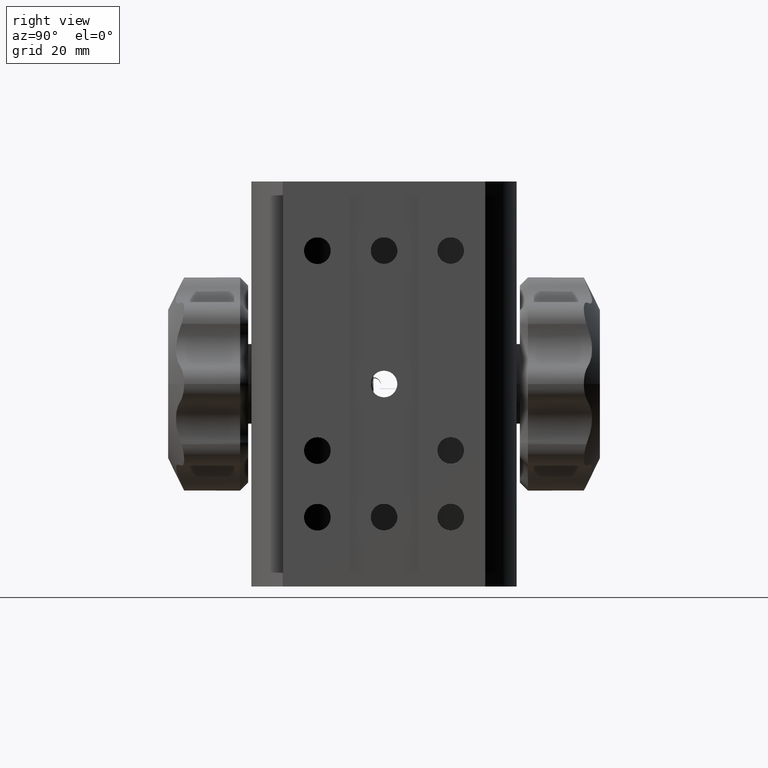
[diagram: clean part render]
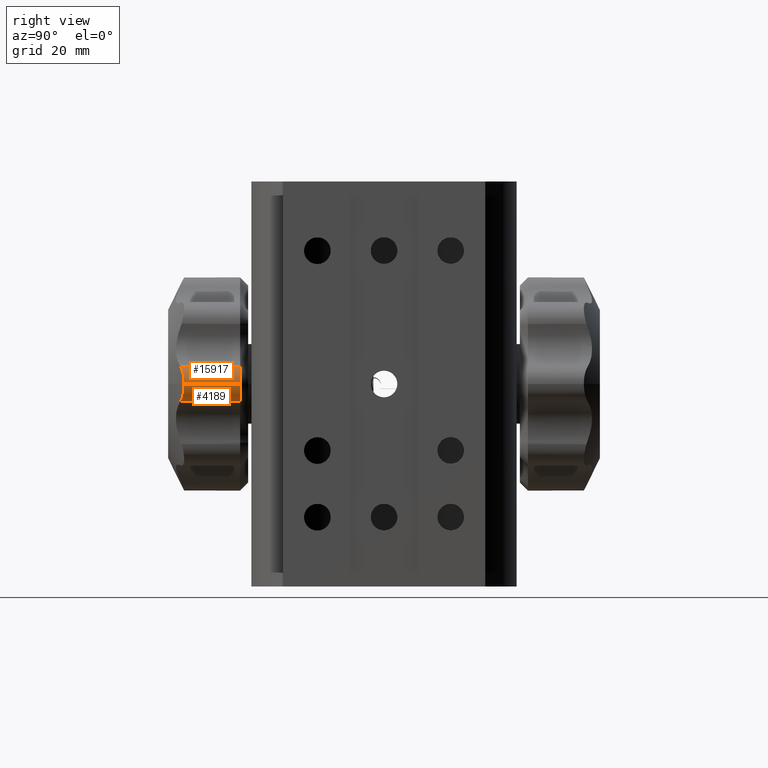
[diagram: same view with one multi-face feature highlighted, each face labeled with its STEP entity id]
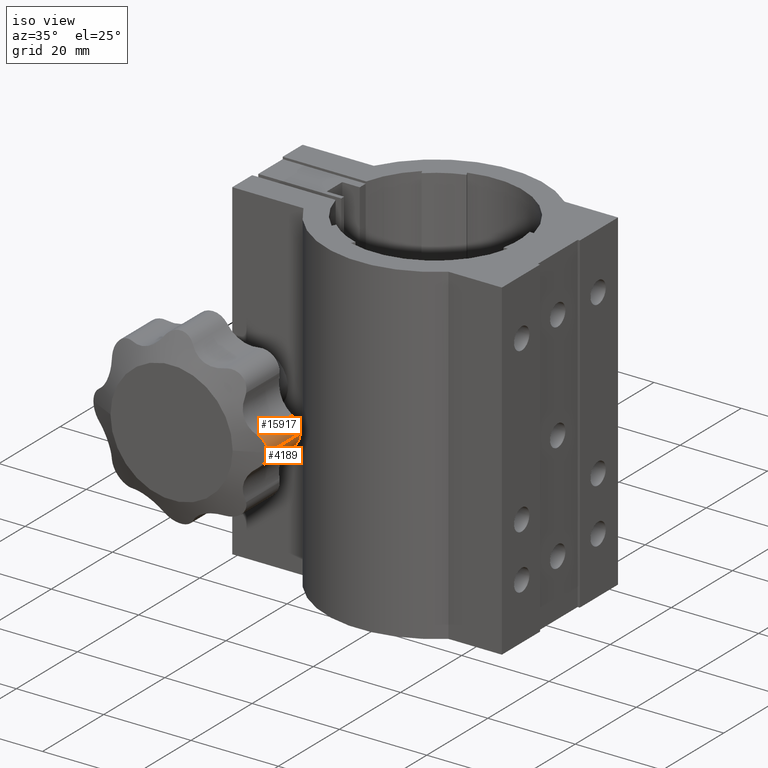
[diagram: same view with one multi-face feature highlighted, each face labeled with its STEP entity id]
A machine part, right view. The highlighted faces form ONE feature: a constant-radius fillet chain: 2 tangent blend faces with common blend radius 4 mm. The faces share edges in the B-rep.
A second angle (iso view) of the same feature is appended — it is thin or edge-on in the first view.
Their STEP definitions:
[1] entity #4189 (Cylinder):
#4 = CARTESIAN_POINT ( 'NONE',  ( -12.10000000000002800, -37.49999999999995000, 38.00000000000000000 ) ) ;
#414 = ORIENTED_EDGE ( 'NONE', *, *, #13451, .T. ) ;
#831 = AXIS2_PLACEMENT_3D ( 'NONE', #10496, #3027, #11750 ) ;
#882 = DIRECTION ( 'NONE',  ( -7.511012776517795100E-017, 1.000000000000000000, -5.679044632606782400E-017 ) ) ;
#1066 = VERTEX_POINT ( 'NONE', #4 ) ;
#1091 = CARTESIAN_POINT ( 'NONE',  ( -13.58618007707078100, -38.11260631183431300, 34.87270644837894200 ) ) ;
#1112 = CARTESIAN_POINT ( 'NONE',  ( -12.10000000000002100, -40.49999999999987200, 37.99999999999995000 ) ) ;
#1399 = FACE_OUTER_BOUND ( 'NONE', #5488, .T. ) ;
#1484 = EDGE_CURVE ( 'NONE', #9461, #4757, #4716, .T. ) ;
#1778 = AXIS2_PLACEMENT_3D ( 'NONE', #7250, #15979, #4761 ) ;
#2069 = ORIENTED_EDGE ( 'NONE', *, *, #2977, .F. ) ;
#2977 = EDGE_CURVE ( 'NONE', #1066, #7727, #12423, .T. ) ;
#3027 = DIRECTION ( 'NONE',  ( 7.511012776517795100E-017, -1.000000000000000000, 5.679044632606782400E-017 ) ) ;
#3641 = CARTESIAN_POINT ( 'NONE',  ( -12.92095610663810100, -37.83354631144486300, 35.55149460211535500 ) ) ;
#4189 = ADVANCED_FACE ( 'NONE', ( #1399 ), #6531, .T. ) ;
#4716 = LINE ( 'NONE', #14655, #14329 ) ;
#4757 = VERTEX_POINT ( 'NONE', #9696 ) ;
#4761 = DIRECTION ( 'NONE',  ( 1.000000000000000000, 0.0000000000000000000, 0.0000000000000000000 ) ) ;
#4894 = CARTESIAN_POINT ( 'NONE',  ( -12.50094550742581000, -37.66163561037062400, 36.24700668126612900 ) ) ;
#5405 = EDGE_CURVE ( 'NONE', #9461, #1066, #6940, .T. ) ;
#5488 = EDGE_LOOP ( 'NONE', ( #2069, #12374, #7981, #414 ) ) ;
#5756 = VECTOR ( 'NONE', #882, 1000.000000000000000 ) ;
#6188 = CARTESIAN_POINT ( 'NONE',  ( -12.31359701654337400, -37.58577770716807700, 36.69999040669321000 ) ) ;
#6531 = CYLINDRICAL_SURFACE ( 'NONE', #1778, 3.999999999999993300 ) ;
#6940 = B_SPLINE_CURVE_WITH_KNOTS ( 'NONE', 3,
 ( #9891, #1091, #11131, #3641, #12401, #4894, #13671, #6188, #14916, #7436, #16225, #8659 ),
 .UNSPECIFIED., .F., .F.,
 ( 4, 2, 2, 2, 2, 4 ),
 ( 2.535578288699374700E-007, 0.0009902620523125509900, 0.001980270546796232100, 0.002475274794038083100, 0.002970279041279934500, 0.003960287535763635500 ),
 .UNSPECIFIED. ) ;
#7250 = CARTESIAN_POINT ( 'NONE',  ( -16.10000000000001200, -40.49999999999987200, 37.99999999999995000 ) ) ;
#7436 = CARTESIAN_POINT ( 'NONE',  ( -12.14106475492095200, -37.51638630186253900, 37.33967780000021000 ) ) ;
#7727 = VERTEX_POINT ( 'NONE', #12158 ) ;
#7981 = ORIENTED_EDGE ( 'NONE', *, *, #1484, .T. ) ;
#8659 = CARTESIAN_POINT ( 'NONE',  ( -12.10000000000002800, -37.49999999999995000, 38.00000000000000000 ) ) ;
#9461 = VERTEX_POINT ( 'NONE', #12196 ) ;
#9696 = CARTESIAN_POINT ( 'NONE',  ( -13.84647206857440900, -26.99999999999985100, 34.69521379476906000 ) ) ;
#9891 = CARTESIAN_POINT ( 'NONE',  ( -13.84647206857440900, -38.22485992281477300, 34.69521379476906000 ) ) ;
#10496 = CARTESIAN_POINT ( 'NONE',  ( -16.10000000000001600, -26.99999999999985100, 37.99999999999995000 ) ) ;
#11131 = CARTESIAN_POINT ( 'NONE',  ( -13.34860991247550600, -38.01216060073307500, 35.07915228988844800 ) ) ;
#11750 = DIRECTION ( 'NONE',  ( -1.000000000000000000, 0.0000000000000000000, 0.0000000000000000000 ) ) ;
#12158 = CARTESIAN_POINT ( 'NONE',  ( -12.10000000000003200, -26.99999999999985100, 37.99999999999995000 ) ) ;
#12196 = CARTESIAN_POINT ( 'NONE',  ( -13.84647206857440900, -38.22485992281477300, 34.69521379476906000 ) ) ;
#12374 = ORIENTED_EDGE ( 'NONE', *, *, #5405, .F. ) ;
#12401 = CARTESIAN_POINT ( 'NONE',  ( -12.73095924099772000, -37.75545086922182500, 35.81956893519713200 ) ) ;
#12423 = LINE ( 'NONE', #1112, #5756 ) ;
#13451 = EDGE_CURVE ( 'NONE', #4757, #7727, #15645, .T. ) ;
#13671 = CARTESIAN_POINT ( 'NONE',  ( -12.43266998980681100, -37.63393594762441600, 36.39452091506762300 ) ) ;
#14329 = VECTOR ( 'NONE', #14604, 1000.000000000000000 ) ;
#14604 = DIRECTION ( 'NONE',  ( -7.511012776517795100E-017, 1.000000000000000000, -5.679044632606782400E-017 ) ) ;
#14655 = CARTESIAN_POINT ( 'NONE',  ( -13.84647206857440500, -40.49999999999987200, 34.69521379476906000 ) ) ;
#14916 = CARTESIAN_POINT ( 'NONE',  ( -12.26258764679220500, -37.56523457982451200, 36.85913854825242500 ) ) ;
#15645 = CIRCLE ( 'NONE', #831, 3.999999999999993300 ) ;
#15979 = DIRECTION ( 'NONE',  ( -7.511012776517795100E-017, 1.000000000000000000, -5.679044632606782400E-017 ) ) ;
#16225 = CARTESIAN_POINT ( 'NONE',  ( -12.10000000000001900, -37.49999999999995000, 37.66651602611741400 ) ) ;
[2] entity #15917 (Cylinder):
#4 = CARTESIAN_POINT ( 'NONE',  ( -12.10000000000002800, -37.49999999999995000, 38.00000000000000000 ) ) ;
#342 = VECTOR ( 'NONE', #778, 1000.000000000000000 ) ;
#778 = DIRECTION ( 'NONE',  ( -7.511012776517795100E-017, 1.000000000000000000, -5.679044632606782400E-017 ) ) ;
#882 = DIRECTION ( 'NONE',  ( -7.511012776517795100E-017, 1.000000000000000000, -5.679044632606782400E-017 ) ) ;
#1066 = VERTEX_POINT ( 'NONE', #4 ) ;
#1112 = CARTESIAN_POINT ( 'NONE',  ( -12.10000000000002100, -40.49999999999987200, 37.99999999999995000 ) ) ;
#1975 = AXIS2_PLACEMENT_3D ( 'NONE', #6811, #15575, #8042 ) ;
#2977 = EDGE_CURVE ( 'NONE', #1066, #7727, #12423, .T. ) ;
#3029 = CARTESIAN_POINT ( 'NONE',  ( -16.10000000000001200, -40.49999999999987200, 37.99999999999995000 ) ) ;
#3078 = EDGE_CURVE ( 'NONE', #1066, #4131, #7148, .T. ) ;
#3233 = FACE_OUTER_BOUND ( 'NONE', #6154, .T. ) ;
#3708 = CARTESIAN_POINT ( 'NONE',  ( -13.84647206857898800, -38.22485992281671200, 41.30478620523395300 ) ) ;
#3766 = CARTESIAN_POINT ( 'NONE',  ( -13.58652559600771100, -38.11275532044614800, 41.12752916038006400 ) ) ;
#4090 = CARTESIAN_POINT ( 'NONE',  ( -13.84647206857893300, -26.99999999999985100, 41.30478620523395300 ) ) ;
#4131 = VERTEX_POINT ( 'NONE', #8363 ) ;
#4366 = CARTESIAN_POINT ( 'NONE',  ( -13.34914336907249300, -38.01238578080707200, 40.92132908734077300 ) ) ;
#4423 = CARTESIAN_POINT ( 'NONE',  ( -13.02851694067564200, -37.87846908720870000, 40.56735968971986500 ) ) ;
#4534 = CARTESIAN_POINT ( 'NONE',  ( -12.92700158500896100, -37.83638424736694400, 40.44095306908768400 ) ) ;
#4640 = CARTESIAN_POINT ( 'NONE',  ( -12.74024568565808100, -37.75938828361663700, 40.17674568433822900 ) ) ;
#4681 = EDGE_CURVE ( 'NONE', #4131, #11636, #7480, .T. ) ;
#4743 = CARTESIAN_POINT ( 'NONE',  ( -12.65513164865500400, -37.72452414048559900, 40.03939154882525000 ) ) ;
#4982 = CYLINDRICAL_SURFACE ( 'NONE', #12330, 3.999999999999993300 ) ;
#5623 = CARTESIAN_POINT ( 'NONE',  ( -12.43301073186955600, -37.63407384865914200, 39.60632474972952400 ) ) ;
#5756 = VECTOR ( 'NONE', #882, 1000.000000000000000 ) ;
#5800 = CARTESIAN_POINT ( 'NONE',  ( -12.31343870608171000, -37.58571358947026700, 39.29963189464451300 ) ) ;
#5801 = CARTESIAN_POINT ( 'NONE',  ( -13.84647206857898500, -40.49999999999987200, 41.30478620523395300 ) ) ;
#5855 = CARTESIAN_POINT ( 'NONE',  ( -12.26273394888004600, -37.56529357583921300, 39.14124462860497300 ) ) ;
#5915 = CARTESIAN_POINT ( 'NONE',  ( -12.18199555004974300, -37.53283897366436200, 38.82236924770292300 ) ) ;
#5980 = CARTESIAN_POINT ( 'NONE',  ( -12.15151395416763200, -37.52062347683789100, 38.66081262209890900 ) ) ;
#6031 = CARTESIAN_POINT ( 'NONE',  ( -12.11050873953517600, -37.50420100701807500, 38.33342894045505000 ) ) ;
#6092 = CARTESIAN_POINT ( 'NONE',  ( -12.10000000000002800, -37.49999999999995000, 38.00000000000000000 ) ) ;
#6154 = EDGE_LOOP ( 'NONE', ( #11689, #10834, #8858, #12747 ) ) ;
#6260 = CARTESIAN_POINT ( 'NONE',  ( -12.10000000000003000, -37.49999999999995700, 38.16649490943557800 ) ) ;
#6644 = CIRCLE ( 'NONE', #1975, 3.999999999999993300 ) ;
#6811 = CARTESIAN_POINT ( 'NONE',  ( -16.10000000000001600, -26.99999999999985100, 37.99999999999995000 ) ) ;
#7148 = B_SPLINE_CURVE_WITH_KNOTS ( 'NONE', 3,
 ( #6092, #6260, #6031, #5980, #5915, #5855, #5800, #5623, #9800, #4743, #4640, #4534, #4423, #4366, #3766, #3708 ),
 .UNSPECIFIED., .F., .F.,
 ( 4, 2, 2, 2, 2, 2, 2, 4 ),
 ( 0.003960287535763635500, 0.004454558287999421100, 0.004948829040235207600, 0.005443099792470993200, 0.005937370544706778800, 0.006431641296942564400, 0.006925912049178350800, 0.007914453553649943700 ),
 .UNSPECIFIED. ) ;
#7480 = LINE ( 'NONE', #5801, #342 ) ;
#7727 = VERTEX_POINT ( 'NONE', #12158 ) ;
#8042 = DIRECTION ( 'NONE',  ( -1.000000000000000000, 0.0000000000000000000, 0.0000000000000000000 ) ) ;
#8363 = CARTESIAN_POINT ( 'NONE',  ( -13.84647206857898800, -38.22485992281671200, 41.30478620523395300 ) ) ;
#8858 = ORIENTED_EDGE ( 'NONE', *, *, #13276, .T. ) ;
#9800 = CARTESIAN_POINT ( 'NONE',  ( -12.50151586287644400, -37.66186732320722500, 39.75418008265639000 ) ) ;
#10834 = ORIENTED_EDGE ( 'NONE', *, *, #2977, .T. ) ;
#11636 = VERTEX_POINT ( 'NONE', #4090 ) ;
#11689 = ORIENTED_EDGE ( 'NONE', *, *, #3078, .F. ) ;
#11700 = DIRECTION ( 'NONE',  ( -7.511012776517795100E-017, 1.000000000000000000, -5.679044632606782400E-017 ) ) ;
#11753 = DIRECTION ( 'NONE',  ( 1.000000000000000000, 0.0000000000000000000, 0.0000000000000000000 ) ) ;
#12158 = CARTESIAN_POINT ( 'NONE',  ( -12.10000000000003200, -26.99999999999985100, 37.99999999999995000 ) ) ;
#12330 = AXIS2_PLACEMENT_3D ( 'NONE', #3029, #11700, #11753 ) ;
#12423 = LINE ( 'NONE', #1112, #5756 ) ;
#12747 = ORIENTED_EDGE ( 'NONE', *, *, #4681, .F. ) ;
#13276 = EDGE_CURVE ( 'NONE', #7727, #11636, #6644, .T. ) ;
#15575 = DIRECTION ( 'NONE',  ( 7.511012776517795100E-017, -1.000000000000000000, 5.679044632606782400E-017 ) ) ;
#15917 = ADVANCED_FACE ( 'NONE', ( #3233 ), #4982, .T. ) ;